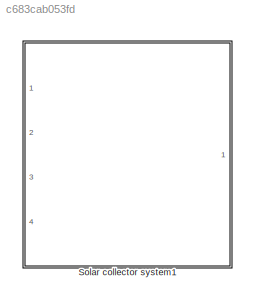
MODEL slx_c683cab053fd
KIND model
CONFIG AbsTol = auto
CONFIG EnableMultiTasking = off
CONFIG FixedStep = auto
CONFIG MaxStep = auto
CONFIG MinStep = auto
CONFIG RelTol = 1e-3
CONFIG SampleTimeConstraint = Unconstrained
CONFIG Solver = VariableStepAuto
CONFIG SolverName = VariableStepAuto
CONFIG StartTime = 0.0
CONFIG StopTime = 8760
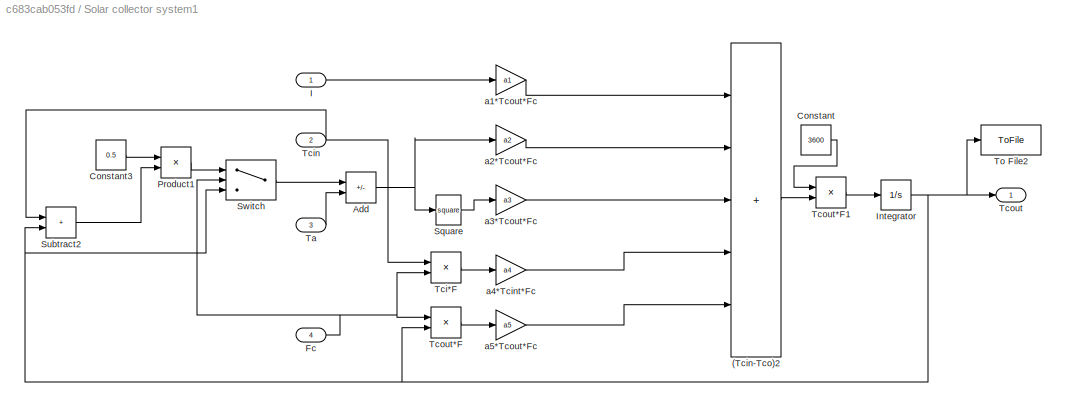
BLOCK [SubSystem] Solar collector system1
  Ports = [4, 1]
  RequestExecContextInheritance = off
BLOCK [Sum] Solar collector system1/(Tcin-Tco)2
  IconShape = rectangular
  Inputs = +++++
  Ports = [5, 1]
BLOCK [Sum] Solar collector system1/Add
  IconShape = rectangular
  Inputs = +-
  Ports = [2, 1]
BLOCK [Constant] Solar collector system1/Constant
  Value = 3600
BLOCK [Constant] Solar collector system1/Constant3
  Value = 0.5
BLOCK [Inport] Solar collector system1/Fc
  Port = 4
BLOCK [Inport] Solar collector system1/I
BLOCK [Integrator] Solar collector system1/Integrator
  InitialCondition = 7.5
  Ports = [1, 1]
BLOCK [Product] Solar collector system1/Product1
  Ports = [2, 1]
BLOCK [Math] Solar collector system1/Square
  Operator = square
  Ports = [1, 1]
BLOCK [Sum] Solar collector system1/Subtract2
  IconShape = rectangular
  Ports = [2, 1]
BLOCK [Switch] Solar collector system1/Switch
  Criteria = u2 > Threshold
  InputSameDT = off
  SaturateOnIntegerOverflow = off
  ZeroCross = off
BLOCK [Inport] Solar collector system1/Ta
  Port = 3
BLOCK [Product] Solar collector system1/Tci*F
  Inputs = **
  Ports = [2, 1]
BLOCK [Inport] Solar collector system1/Tcin
  Port = 2
BLOCK [Outport] Solar collector system1/Tcout
BLOCK [Product] Solar collector system1/Tcout*F
  Inputs = **
  Ports = [2, 1]
BLOCK [Product] Solar collector system1/Tcout*F1
  Inputs = **
  Ports = [2, 1]
BLOCK [ToFile] Solar collector system1/To File2
  Filename = Tcout_ex
  MatrixName = Tcout_ex
  Ports = [1]
  SampleTime = 1
BLOCK [Gain] Solar collector system1/a1*Tcout*Fc
  Gain = a1
BLOCK [Gain] Solar collector system1/a2*Tcout*Fc
  Gain = a2
BLOCK [Gain] Solar collector system1/a3*Tcout*Fc
  Gain = a3
BLOCK [Gain] Solar collector system1/a4*Tcint*Fc
  Gain = a4
BLOCK [Gain] Solar collector system1/a5*Tcout*Fc 
  Gain = a5
LINE Solar collector system1/(Tcin-Tco)2:1 -> Solar collector system1/Tcout*F1:2
NET Solar collector system1/Add:1 -> Solar collector system1/Square:1, Solar collector system1/a2*Tcout*Fc:1
LINE Solar collector system1/Constant3:1 -> Solar collector system1/Product1:1
LINE Solar collector system1/Constant:1 -> Solar collector system1/Tcout*F1:1
NET Solar collector system1/Fc:1 -> Solar collector system1/Switch:2, Solar collector system1/Tci*F:2, Solar collector system1/Tcout*F:1
LINE Solar collector system1/I:1 -> Solar collector system1/a1*Tcout*Fc:1
NET Solar collector system1/Integrator:1 -> Solar collector system1/Subtract2:2, Solar collector system1/Switch:3, Solar collector system1/Tcout*F:2, Solar collector system1/Tcout:1, Solar collector system1/To File2:1
LINE Solar collector system1/Product1:1 -> Solar collector system1/Switch:1
LINE Solar collector system1/Square:1 -> Solar collector system1/a3*Tcout*Fc:1
LINE Solar collector system1/Subtract2:1 -> Solar collector system1/Product1:2
LINE Solar collector system1/Switch:1 -> Solar collector system1/Add:1
LINE Solar collector system1/Ta:1 -> Solar collector system1/Add:2
LINE Solar collector system1/Tci*F:1 -> Solar collector system1/a4*Tcint*Fc:1
NET Solar collector system1/Tcin:1 -> Solar collector system1/Subtract2:1, Solar collector system1/Tci*F:1
LINE Solar collector system1/Tcout*F1:1 -> Solar collector system1/Integrator:1
LINE Solar collector system1/Tcout*F:1 -> Solar collector system1/a5*Tcout*Fc :1
LINE Solar collector system1/a1*Tcout*Fc:1 -> Solar collector system1/(Tcin-Tco)2:1
LINE Solar collector system1/a2*Tcout*Fc:1 -> Solar collector system1/(Tcin-Tco)2:2
LINE Solar collector system1/a3*Tcout*Fc:1 -> Solar collector system1/(Tcin-Tco)2:3
LINE Solar collector system1/a4*Tcint*Fc:1 -> Solar collector system1/(Tcin-Tco)2:4
LINE Solar collector system1/a5*Tcout*Fc :1 -> Solar collector system1/(Tcin-Tco)2:5
note: NET lines group one-source signal fan-out (src -> all destinations, sorted); 1:1 wires keep LINE
